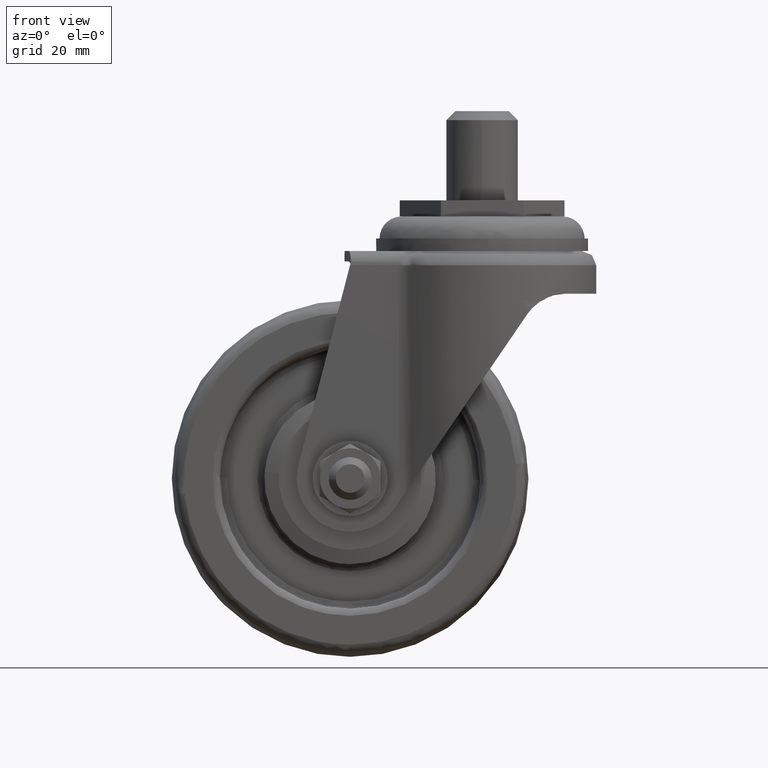
[diagram: clean part render]
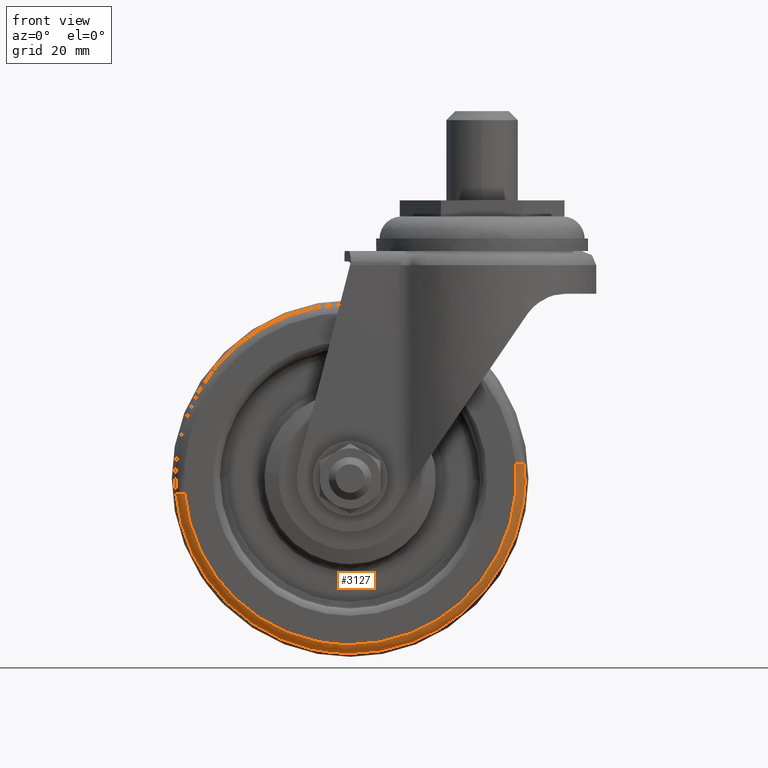
[diagram: same view with one face highlighted and labeled with its STEP entity id]
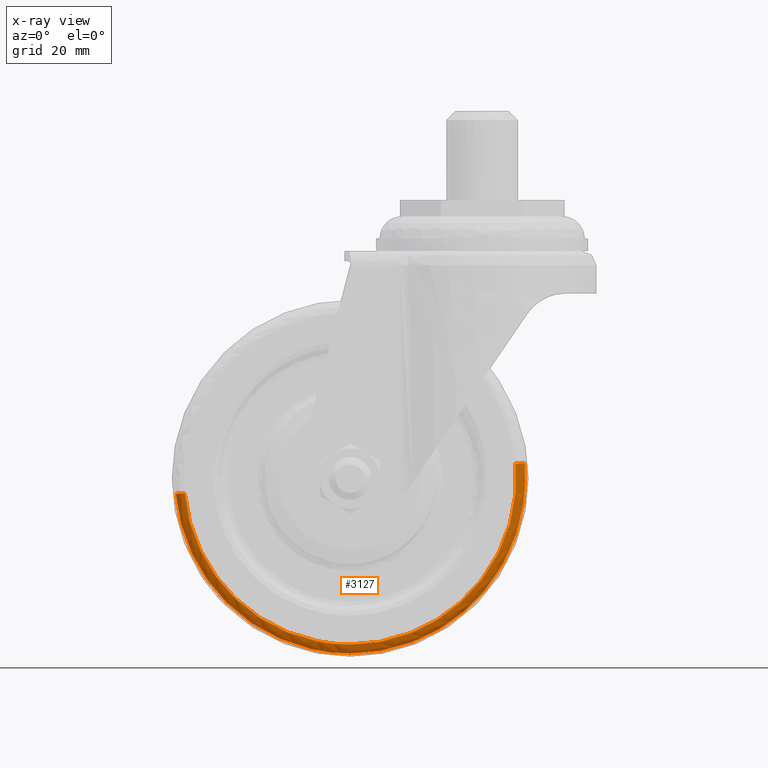
[diagram: x-ray of the same camera — body ghosted, the highlighted face saturated]
A machine part, front view. The second image highlights one B-rep face of the part: STEP entity #3127.
The next image is the same camera in x-ray: the body ghosted, the highlighted face saturated — about 0% of this face is hidden behind the body in this view.
In plain terms, the highlighted face is a freeform B-spline surface patch.
Its self-contained STEP definition (entity closure, byte-faithful):
#2915=CARTESIAN_POINT('',(-37.0,-16.779637920549199,-122.558524584321300));
#2916=VERTEX_POINT('',#2915);
#2937=CARTESIAN_POINT('',(11.868843852253340,-16.779638064477808,-69.190150028960716));
#2938=VERTEX_POINT('',#2937);
#2952=CARTESIAN_POINT('',(-37.0,-16.779637920549199,-122.558524584321300));
#2953=CARTESIAN_POINT('',(12.058522565243713,-16.779637986460859,-122.558524533090280));
#2954=CARTESIAN_POINT('',(12.058523199632280,-16.779638058411692,-73.499999892817485));
#2955=CARTESIAN_POINT('',(12.058523227552154,-16.779638061578293,-71.340901001122916));
#2956=CARTESIAN_POINT('',(11.868843852253335,-16.779638064477805,-69.190150028960730));
#2964=(BOUNDED_CURVE()B_SPLINE_CURVE(2,(#2952,#2953,#2954,#2955,#2956),.UNSPECIFIED.,.F.,.U.)B_SPLINE_CURVE_WITH_KNOTS((3,2,3),(0.0,0.250000000000000,0.265281544351793),.UNSPECIFIED.)CURVE()GEOMETRIC_REPRESENTATION_ITEM()RATIONAL_B_SPLINE_CURVE((1.0,0.707106781186547,1.0,0.982096557145452,0.966381852339156))REPRESENTATION_ITEM(''));
#2965=EDGE_CURVE('',#2916,#2938,#2964,.T.);
#3004=CARTESIAN_POINT('',(-85.868843852252752,-16.779638064483009,-77.809849971039228));
#3005=VERTEX_POINT('',#3004);
#3006=CARTESIAN_POINT('',(-85.868843852252752,-16.779638064483009,-77.809849971039228));
#3007=CARTESIAN_POINT('',(-81.922360370646729,-16.779637992529587,-122.558524640269440));
#3008=CARTESIAN_POINT('',(-37.0,-16.779637920549199,-122.558524584321300));
#3016=(BOUNDED_CURVE()B_SPLINE_CURVE(2,(#3006,#3007,#3008),.UNSPECIFIED.,.F.,.U.)B_SPLINE_CURVE_WITH_KNOTS((3,3),(0.765281544351816,1.0),.UNSPECIFIED.)CURVE()GEOMETRIC_REPRESENTATION_ITEM()RATIONAL_B_SPLINE_CURVE((0.966381852339108,0.725010224041123,1.0))REPRESENTATION_ITEM(''));
#3017=EDGE_CURVE('',#3005,#2916,#3016,.T.);
#3040=CARTESIAN_POINT('',(-85.881812924462821,-16.615524234283946,-77.810993741770659));
#3041=CARTESIAN_POINT('',(-81.570819182692162,-16.615524234283960,-126.692806666233490));
#3042=CARTESIAN_POINT('',(-32.689006258229355,-16.615524234283946,-122.381812924462790));
#3043=CARTESIAN_POINT('',(16.192806666233473,-16.615524234283960,-118.070819182692180));
#3044=CARTESIAN_POINT('',(11.881812924462828,-16.615524234283946,-69.189006258229355));
#3045=CARTESIAN_POINT('',(-85.764488304173454,-19.161617428896207,-77.800646627505387));
#3046=CARTESIAN_POINT('',(-81.463841676668054,-19.161617428896204,-126.565134931678800));
#3047=CARTESIAN_POINT('',(-32.699353372494620,-19.161617428896207,-122.264488304173410));
#3048=CARTESIAN_POINT('',(16.065134931678795,-19.161617428896204,-117.963841676668050));
#3049=CARTESIAN_POINT('',(11.764488304173423,-19.161617428896207,-69.199353372494613));
#3050=CARTESIAN_POINT('',(-83.230982023636074,-18.994628769222455,-77.577211180522042));
#3051=CARTESIAN_POINT('',(-79.153770843114017,-18.994628769222444,-123.808193204158090));
#3052=CARTESIAN_POINT('',(-32.922788819477958,-18.994628769222455,-119.730982023636070));
#3053=CARTESIAN_POINT('',(13.308193204158098,-18.994628769222444,-115.653770843114000));
#3054=CARTESIAN_POINT('',(9.230982023636070,-18.994628769222455,-69.422788819477958));
#3062=(BOUNDED_SURFACE()B_SPLINE_SURFACE(2,2,((#3040,#3045,#3050),(#3041,#3046,#3051),(#3042,#3047,#3052),(#3043,#3048,#3053),(#3044,#3049,#3054)),.UNSPECIFIED.,.F.,.F.,.U.)B_SPLINE_SURFACE_WITH_KNOTS((3,2,3),(3,3),(0.0,81.304394032494926,162.608788064989910),(0.0,4.198879497547068),.UNSPECIFIED.)GEOMETRIC_REPRESENTATION_ITEM()RATIONAL_B_SPLINE_SURFACE(((0.912915464723953,0.640770108283612,0.917241266304931),(0.645528715756375,0.453092888748980,0.648587519388353),(0.912915464723953,0.640770108283612,0.917241266304931),(0.645528715756375,0.453092888748980,0.648587519388353),(0.912915464723953,0.640770108283612,0.917241266304931)))REPRESENTATION_ITEM('')SURFACE());
#3063=ORIENTED_EDGE('',*,*,#3017,.T.);
#3064=ORIENTED_EDGE('',*,*,#2965,.T.);
#3065=CARTESIAN_POINT('',(9.394139176664208,-19.000000000000249,-69.408399634029863));
#3066=VERTEX_POINT('',#3065);
#3067=CARTESIAN_POINT('',(11.868843852253335,-16.779638064477815,-69.190150028960716));
#3068=CARTESIAN_POINT('',(11.619883189006449,-18.999999924292240,-69.212106413049398));
#3069=CARTESIAN_POINT('',(9.394139176664208,-19.000000000000249,-69.408399634029863));
#3077=(BOUNDED_CURVE()B_SPLINE_CURVE(2,(#3067,#3068,#3069),.UNSPECIFIED.,.F.,.U.)B_SPLINE_CURVE_WITH_KNOTS((3,3),(-1.708287058725996,-0.279319867967948),.UNSPECIFIED.)CURVE()GEOMETRIC_REPRESENTATION_ITEM()RATIONAL_B_SPLINE_CURVE((0.889328859460162,0.664553136670083,0.893261815703877))REPRESENTATION_ITEM(''));
#3078=EDGE_CURVE('',#2938,#3066,#3077,.T.);
#3079=ORIENTED_EDGE('',*,*,#3078,.T.);
#3080=CARTESIAN_POINT('',(-37.0,-19.000000000000249,-120.074213284602000));
#3081=VERTEX_POINT('',#3080);
#3082=CARTESIAN_POINT('',(-37.0,-19.000000000000249,-120.074213284602000));
#3083=CARTESIAN_POINT('',(9.574213286653013,-19.000000000000252,-120.074213284421130));
#3084=CARTESIAN_POINT('',(9.574213288892873,-19.000000000000249,-73.499999999621579));
#3085=CARTESIAN_POINT('',(9.574213288991450,-19.000000000000249,-71.450237224799537));
#3086=CARTESIAN_POINT('',(9.394139176664208,-19.000000000000249,-69.408399634029863));
#3094=(BOUNDED_CURVE()B_SPLINE_CURVE(2,(#3082,#3083,#3084,#3085,#3086),.UNSPECIFIED.,.F.,.U.)B_SPLINE_CURVE_WITH_KNOTS((3,2,3),(0.0,0.250000000000000,0.265281545144374),.UNSPECIFIED.)CURVE()GEOMETRIC_REPRESENTATION_ITEM()RATIONAL_B_SPLINE_CURVE((1.0,0.707106781186547,1.0,0.982096556216884,0.966381850709060))REPRESENTATION_ITEM(''));
#3095=EDGE_CURVE('',#3081,#3066,#3094,.T.);
#3096=ORIENTED_EDGE('',*,*,#3095,.F.);
#3097=CARTESIAN_POINT('',(-83.394139176664197,-19.000000000000249,-77.591600365970137));
#3098=VERTEX_POINT('',#3097);
#3099=CARTESIAN_POINT('',(-83.394139176664197,-19.000000000000249,-77.591600365970137));
#3100=CARTESIAN_POINT('',(-79.647504844062865,-19.000000000000252,-120.074213284799540));
#3101=CARTESIAN_POINT('',(-37.0,-19.000000000000249,-120.074213284602000));
#3109=(BOUNDED_CURVE()B_SPLINE_CURVE(2,(#3099,#3100,#3101),.UNSPECIFIED.,.F.,.U.)B_SPLINE_CURVE_WITH_KNOTS((3,3),(0.765281545144374,1.0),.UNSPECIFIED.)CURVE()GEOMETRIC_REPRESENTATION_ITEM()RATIONAL_B_SPLINE_CURVE((0.966381850709060,0.725010224969663,1.0))REPRESENTATION_ITEM(''));
#3110=EDGE_CURVE('',#3098,#3081,#3109,.T.);
#3111=ORIENTED_EDGE('',*,*,#3110,.F.);
#3112=CARTESIAN_POINT('',(-85.868843852252752,-16.779638064483002,-77.809849971039228));
#3113=CARTESIAN_POINT('',(-85.619883189001783,-18.999999924292254,-77.787893586950204));
#3114=CARTESIAN_POINT('',(-83.394139176664197,-19.000000000000249,-77.591600365970137));
#3122=(BOUNDED_CURVE()B_SPLINE_CURVE(2,(#3112,#3113,#3114),.UNSPECIFIED.,.F.,.U.)B_SPLINE_CURVE_WITH_KNOTS((3,3),(-1.708287058723756,-0.279319867967948),.UNSPECIFIED.)CURVE()GEOMETRIC_REPRESENTATION_ITEM()RATIONAL_B_SPLINE_CURVE((0.889328859459457,0.664553136670442,0.893261815703877))REPRESENTATION_ITEM(''));
#3123=EDGE_CURVE('',#3005,#3098,#3122,.T.);
#3124=ORIENTED_EDGE('',*,*,#3123,.F.);
#3125=EDGE_LOOP('',(#3063,#3064,#3079,#3096,#3111,#3124));
#3126=FACE_OUTER_BOUND('',#3125,.T.);
#3127=ADVANCED_FACE('',(#3126),#3062,.T.);